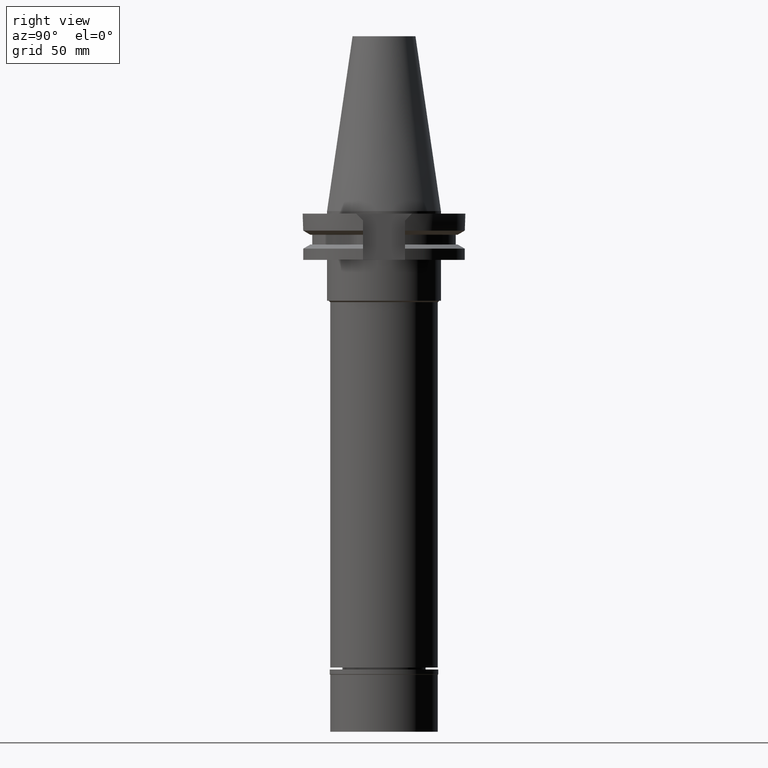
[diagram: clean part render]
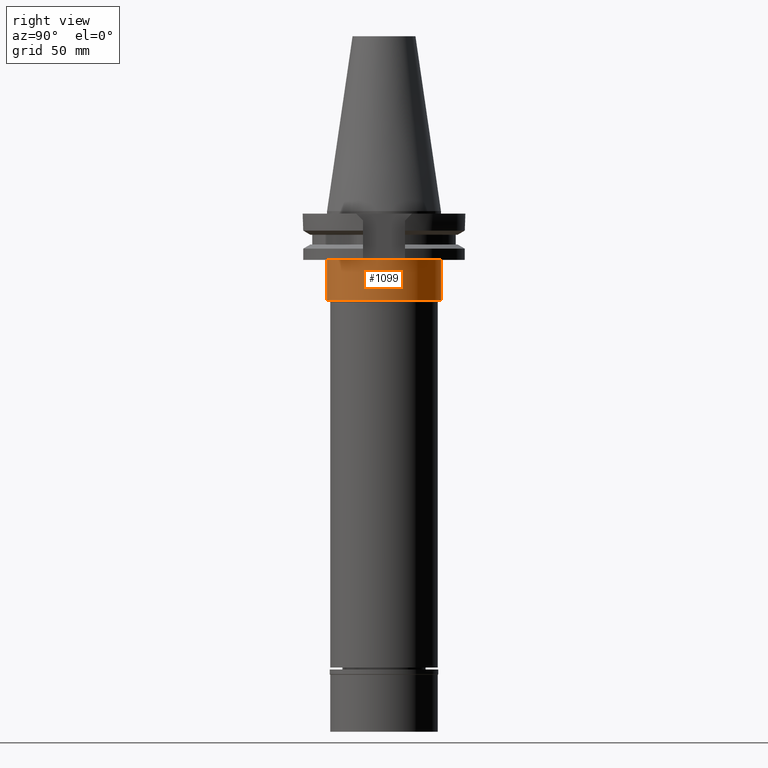
[diagram: same view with one face highlighted and labeled with its STEP entity id]
A machine part, right view. The second image highlights one B-rep face of the part: STEP entity #1099.
In plain terms, the highlighted cylindrical surface (partial cylindrical patch) has radius 22.225 mm, axis along (0, 0, -1).
Its self-contained STEP definition (entity closure, byte-faithful):
#69 = EDGE_CURVE ( 'NONE', #1828, #1868, #1312, .T. ) ;
#109 = EDGE_CURVE ( 'NONE', #2213, #143, #383, .T. ) ;
#143 = VERTEX_POINT ( 'NONE', #699 ) ;
#144 = AXIS2_PLACEMENT_3D ( 'NONE', #1936, #2963, #918 ) ;
#163 = CARTESIAN_POINT ( 'NONE',  ( 0.0000000000000000000, 22.22500000000000142, -19.05000000000000071 ) ) ;
#180 = VECTOR ( 'NONE', #1842, 1000.000000000000000 ) ;
#383 = CIRCLE ( 'NONE', #444, 22.22500000000000142 ) ;
#401 = CARTESIAN_POINT ( 'NONE',  ( 0.0000000000000000000, -22.22500000000000142, -35.00000000000000000 ) ) ;
#444 = AXIS2_PLACEMENT_3D ( 'NONE', #1506, #2521, #1477 ) ;
#470 = CARTESIAN_POINT ( 'NONE',  ( 0.0000000000000000000, 2.222091000882999701E-14, -35.00000000000000000 ) ) ;
#495 = ORIENTED_EDGE ( 'NONE', *, *, #772, .T. ) ;
#499 = DIRECTION ( 'NONE',  ( 0.0000000000000000000, 0.0000000000000000000, 1.000000000000000000 ) ) ;
#508 = VECTOR ( 'NONE', #1564, 1000.000000000000000 ) ;
#575 = CARTESIAN_POINT ( 'NONE',  ( 0.0000000000000000000, 22.22500000000000142, -19.05000000000000071 ) ) ;
#699 = CARTESIAN_POINT ( 'NONE',  ( 0.0000000000000000000, -22.22500000000000142, -19.05000000000000071 ) ) ;
#746 = DIRECTION ( 'NONE',  ( 0.0000000000000000000, -1.000000000000000000, 0.0000000000000000000 ) ) ;
#772 = EDGE_CURVE ( 'NONE', #143, #1828, #1051, .T. ) ;
#918 = DIRECTION ( 'NONE',  ( 0.0000000000000000000, -1.000000000000000000, 0.0000000000000000000 ) ) ;
#999 = EDGE_CURVE ( 'NONE', #2213, #1868, #2616, .T. ) ;
#1051 = LINE ( 'NONE', #2276, #508 ) ;
#1099 = ADVANCED_FACE ( 'NONE', ( #1859 ), #2710, .T. ) ;
#1312 = CIRCLE ( 'NONE', #1744, 22.22500000000000142 ) ;
#1391 = CARTESIAN_POINT ( 'NONE',  ( 0.0000000000000000000, 22.22500000000000142, -35.00000000000000000 ) ) ;
#1396 = ORIENTED_EDGE ( 'NONE', *, *, #69, .T. ) ;
#1477 = DIRECTION ( 'NONE',  ( 0.0000000000000000000, 1.000000000000000000, 0.0000000000000000000 ) ) ;
#1506 = CARTESIAN_POINT ( 'NONE',  ( 0.0000000000000000000, 2.222091000882999701E-14, -19.05000000000000071 ) ) ;
#1564 = DIRECTION ( 'NONE',  ( 0.0000000000000000000, 0.0000000000000000000, -1.000000000000000000 ) ) ;
#1744 = AXIS2_PLACEMENT_3D ( 'NONE', #470, #499, #746 ) ;
#1828 = VERTEX_POINT ( 'NONE', #401 ) ;
#1842 = DIRECTION ( 'NONE',  ( 0.0000000000000000000, 0.0000000000000000000, -1.000000000000000000 ) ) ;
#1859 = FACE_OUTER_BOUND ( 'NONE', #3181, .T. ) ;
#1868 = VERTEX_POINT ( 'NONE', #1391 ) ;
#1936 = CARTESIAN_POINT ( 'NONE',  ( 0.0000000000000000000, 2.222091000882999701E-14, 81.44750000000000512 ) ) ;
#2213 = VERTEX_POINT ( 'NONE', #575 ) ;
#2276 = CARTESIAN_POINT ( 'NONE',  ( 0.0000000000000000000, -22.22500000000000142, -19.05000000000000071 ) ) ;
#2488 = ORIENTED_EDGE ( 'NONE', *, *, #999, .F. ) ;
#2521 = DIRECTION ( 'NONE',  ( 0.0000000000000000000, 0.0000000000000000000, -1.000000000000000000 ) ) ;
#2616 = LINE ( 'NONE', #163, #180 ) ;
#2710 = CYLINDRICAL_SURFACE ( 'NONE', #144, 22.22500000000000142 ) ;
#2825 = ORIENTED_EDGE ( 'NONE', *, *, #109, .T. ) ;
#2963 = DIRECTION ( 'NONE',  ( 0.0000000000000000000, 0.0000000000000000000, -1.000000000000000000 ) ) ;
#3181 = EDGE_LOOP ( 'NONE', ( #2825, #495, #1396, #2488 ) ) ;